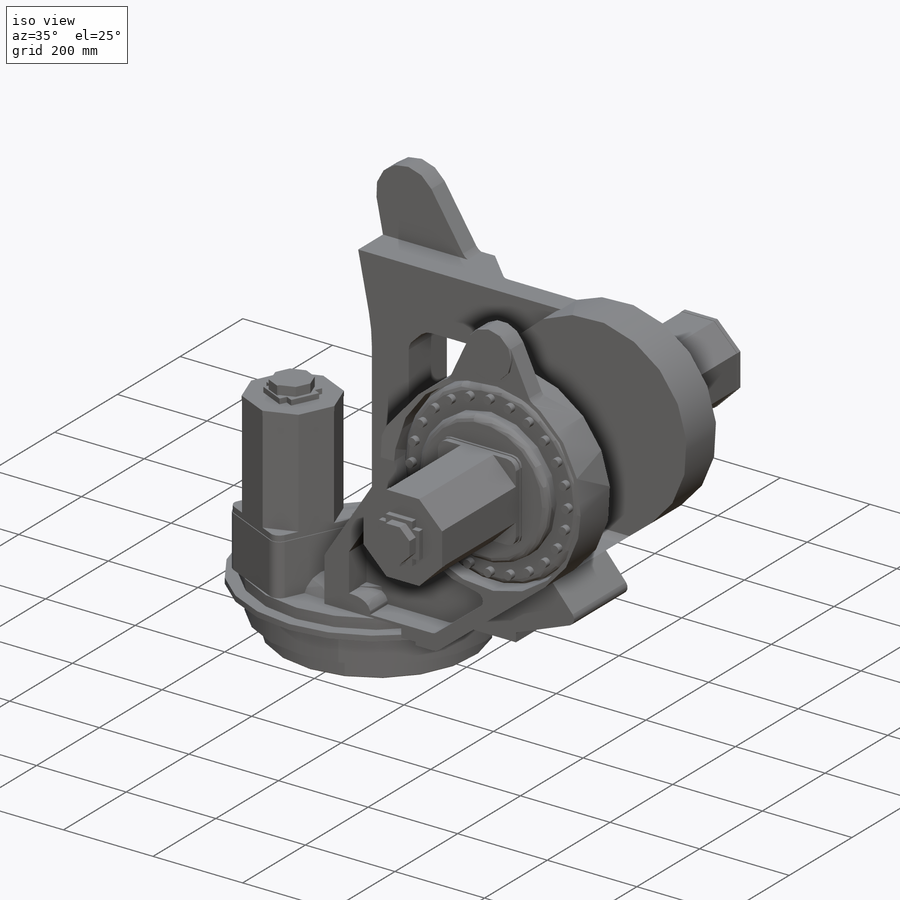
[diagram: iso view]
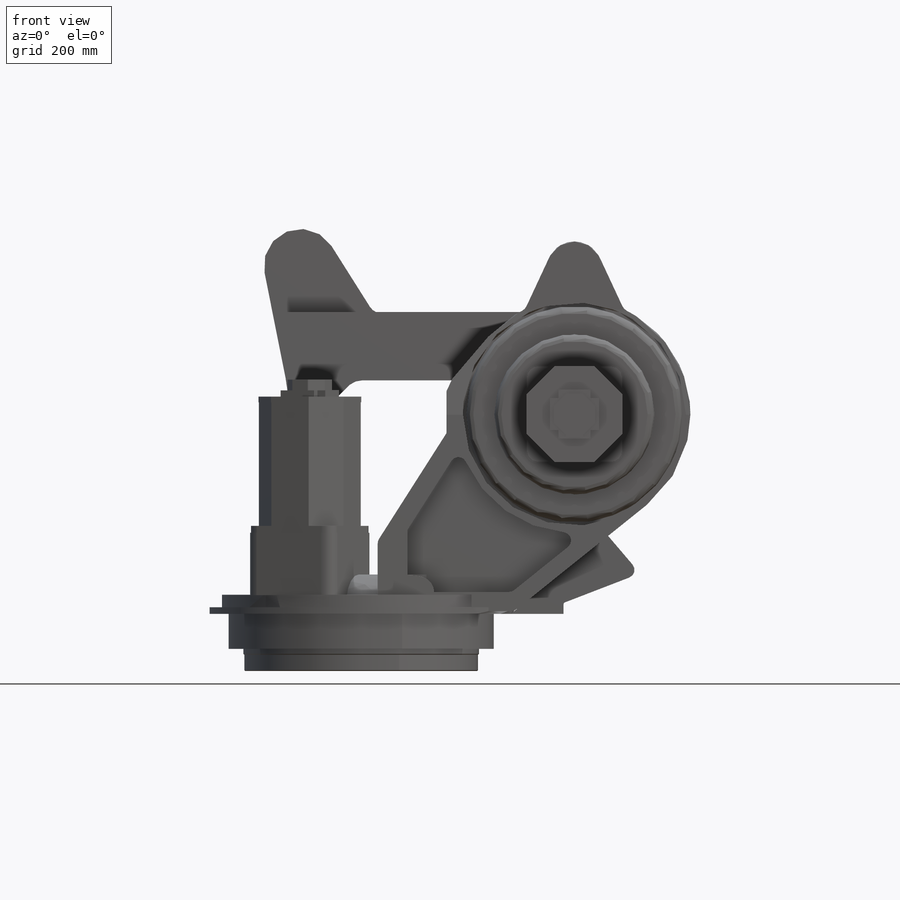
[diagram: front view]
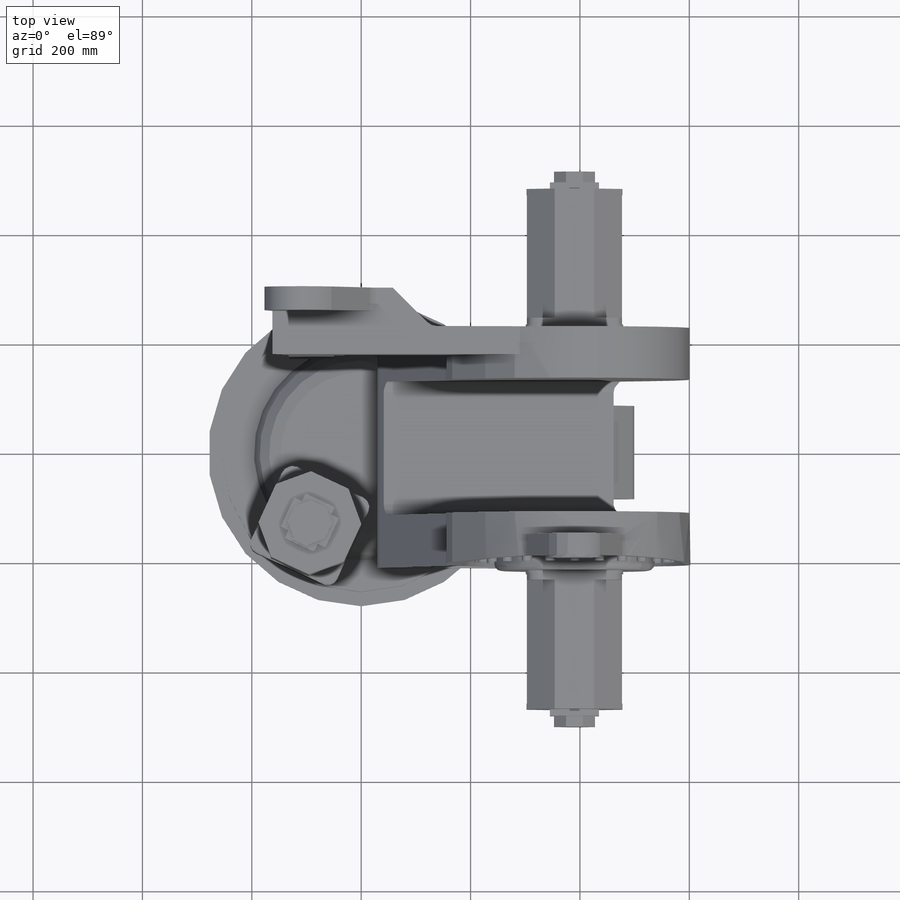
[diagram: top view]
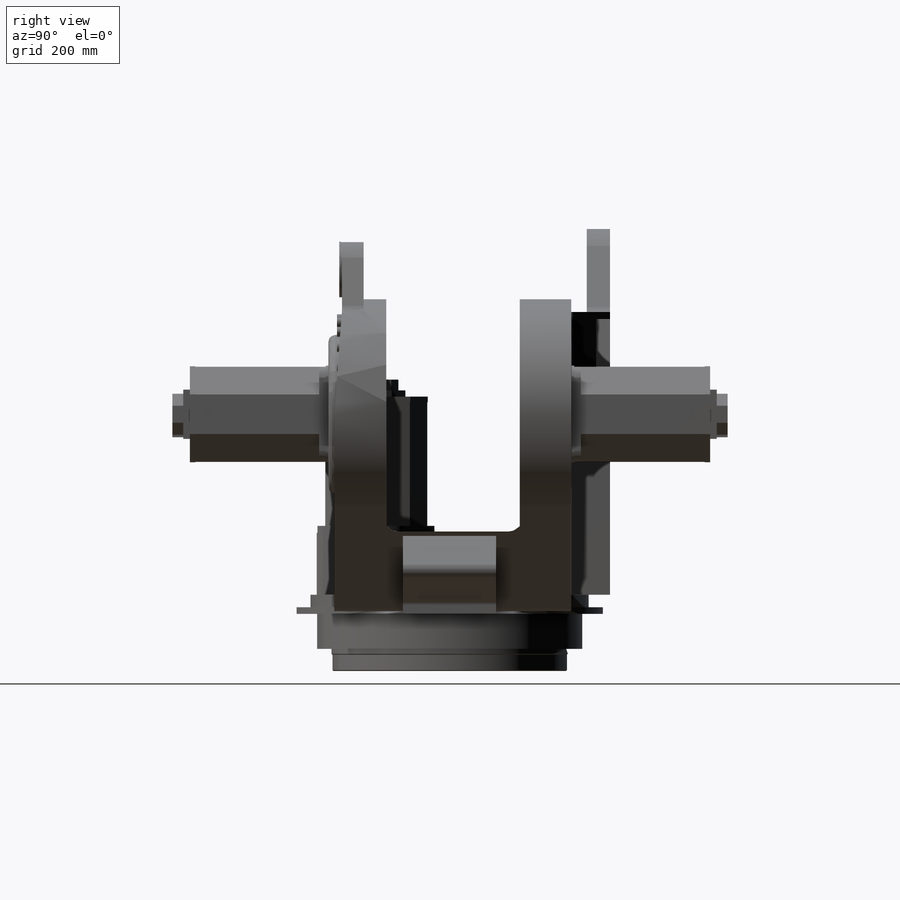
[diagram: right view]
SOLIDWORKS PART (.sldprt)
format: sldprt  version: not decoded by parser v0  size: 1,244,672 bytes
history: native  units: mm
features: sketch x43, extrude x37, cut_extrude x5, plane x4, fillet x2, material x1, chamfer x1 (+10 scaffold rows collapsed)
feature tree (103):
  scaffold x10  (default folders/planes/origin — collapsed)
  material  "PW110:Mi:0:30:Re:13:"
  plane  "FRONT"
  plane  "TOP"
  plane  "SIDE"
  sketch  "Sketch5"  dims[D1=484.886mm]
  extrude  "Extrude1"  Depth=64.135mm
  sketch  "Sketch6"  dims[D1=432.308mm]
  extrude  "Extrude2"  Depth=10.4775mm
  sketch  "Sketch7"  dims[D1=428.752mm]
  extrude  "Extrude3"  Depth=29.8577mm
  chamfer  "Chamfer2"  Distance=1.524mm Angle=45deg
  sketch  "Sketch8"
  extrude  "Extrude4"  Depth=12.192mm
  sketch  "Sketch9"
  extrude  "Extrude5"  Depth=22.733mm
  plane  "Plane1"  Offset=116.704392mm
  sketch  "Sketch10"
  extrude  "Extrude6"  Depth=38.608mm
  sketch  "Sketch11"
  cut_extrude  "Cut-Extrude2"  [1 undecoded]
  sketch  "Sketch12"
  extrude  "Extrude7"  Depth=85.598mm
  sketch  "Sketch13"  dims[D1=0.0mm]
  extrude  "Extrude11"  Depth=55.753mm
  sketch  "Sketch14"
  cut_extrude  "Cut-Extrude3"  [1 undecoded]
  sketch  "Sketch15"
  extrude  "Extrude12"  Depth=39.5605mm
  sketch  "Sketch16"  dims[D1=~85.941766mm]
  extrude  "Extrude13"  Depth=5.040006mm
  sketch  "Sketch17"  dims[D1=0.0mm D2=0.0mm]
  extrude  "Extrude14"  Depth=57.110006mm
  sketch  "Sketch19"
  extrude  "Extrude15"  Depth=70.762506mm
  sketch  "Sketch21"
  cut_extrude  "Cut-Extrude4"  Depth=79.017506mm
  sketch  "Sketch22"  dims[D1=12.7mm]
  cut_extrude  "Cut-Extrude5"  Depth=25.4mm
  sketch  "Sketch23"
  extrude  "Extrude16"  Depth=37.1475mm
  fillet  "Fillet1"  Radius=50.8mm
  sketch  "Sketch24"
  extrude  "Extrude17"  Depth=76.2mm
  sketch  "Sketch29"  dims[D1=0.0mm D2=6.35mm]
  extrude  "Extrude21"  Depth=38.1mm
  sketch  "Sketch25"
  extrude  "Extrude18"  Depth=28.448mm
  sketch  "Sketch26"
  extrude  "Extrude19"  Depth=4.826mm
  sketch  "Sketch27"
  cut_extrude  "Cut-Extrude6"  Depth=133.301839mm
  sketch  "Sketch28"  dims[D1=0.0mm D2=6.35mm]
  extrude  "Extrude20"  Depth=27.178mm
  sketch  "Sketch30"
  extrude  "Extrude22"  Depth=30.48mm
  sketch  "Sketch31"  dims[D1=0.0mm]
  extrude  "Extrude23"  Depth=4.826mm
  sketch  "Sketch32"
  extrude  "Extrude24"  Depth=12.192mm
  sketch  "Sketch33"  dims[D1=0.0mm]
  extrude  "Extrude25"  Depth=12.192mm
  sketch  "Sketch34"  dims[D1=0.0mm]
  extrude  "Extrude26"  Depth=226.314mm
  sketch  "Sketch35"  dims[D1=0.0mm]
  extrude  "Extrude27"  Depth=226.314mm
  sketch  "Sketch36"  dims[D1=0.762mm]
  extrude  "Extrude28"  Depth=9.906mm
  sketch  "Sketch37"  dims[D1=0.762mm]
  extrude  "Extrude29"  Depth=9.906mm
  sketch  "Sketch38"
  extrude  "Extrude30"  Depth=12.192mm
  sketch  "Sketch39"  dims[D1=0.0mm]
  extrude  "Extrude31"  Depth=12.192mm
  sketch  "Sketch40"
  extrude  "Extrude32"  Depth=19.812mm
  sketch  "Sketch41"  dims[D1=0.0mm]
  extrude  "Extrude33"  Depth=19.812mm
  sketch  "Sketch42"
  extrude  "Extrude34"  Depth=12.7mm
  sketch  "Sketch48"
  extrude  "Extrude40"  Depth=12.7mm
  sketch  "Sketch43"  dims[D1=1.524mm]
  extrude  "Extrude35"  Depth=12.7mm
  sketch  "Sketch44"  dims[D1=0.0mm]
  extrude  "Extrude36"  Depth=226.06mm
  sketch  "Sketch45"  dims[D1=0.762mm]
  extrude  "Extrude37"  Depth=10.16mm
  sketch  "Sketch46"
  extrude  "Extrude38"  Depth=11.43mm
  sketch  "Sketch47"
  extrude  "Extrude39"  Depth=19.812mm
  fillet  "Fillet2"  Radius=12.7mm
  sketch  "Sketch49"
decode coverage: 63 of 88 modeling features carry decoded parameters
note: ~ marks probable driven/reference dimensions
note: 2 parameter values undecoded
note: suppression state not decoded; provenance and decode notes live in map.json
